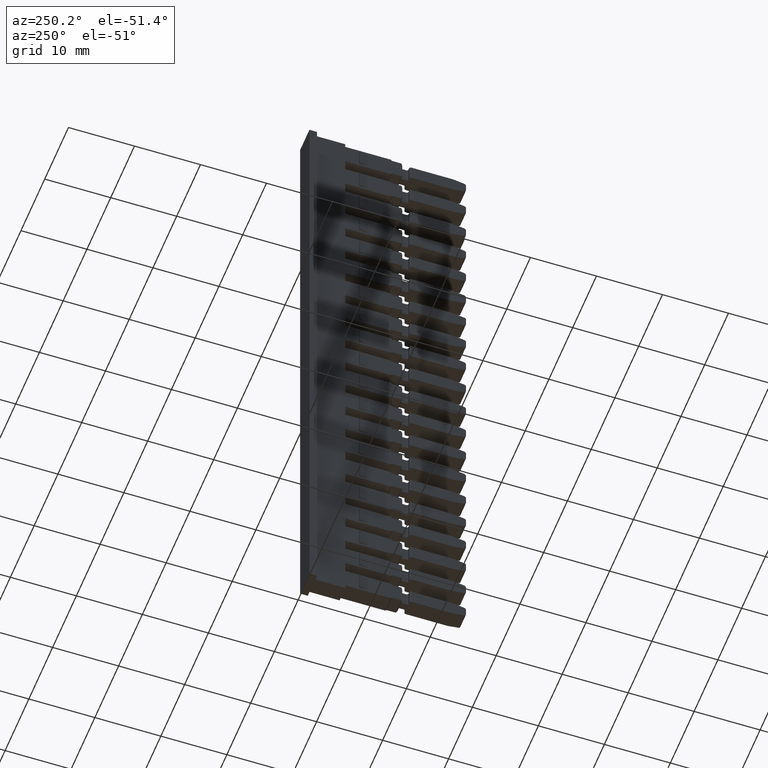
[diagram: clean part render]
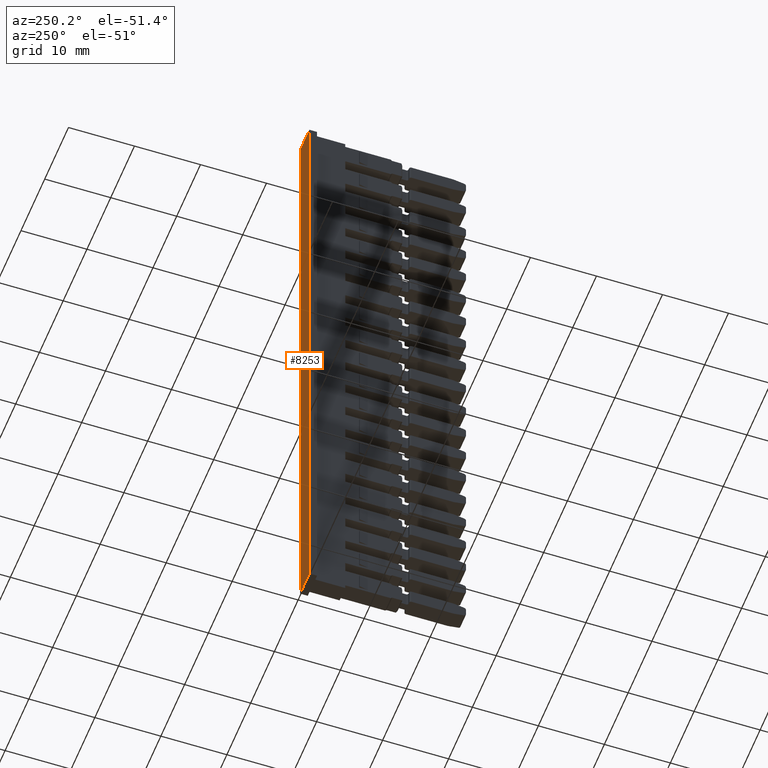
[diagram: same view with one face highlighted and labeled with its STEP entity id]
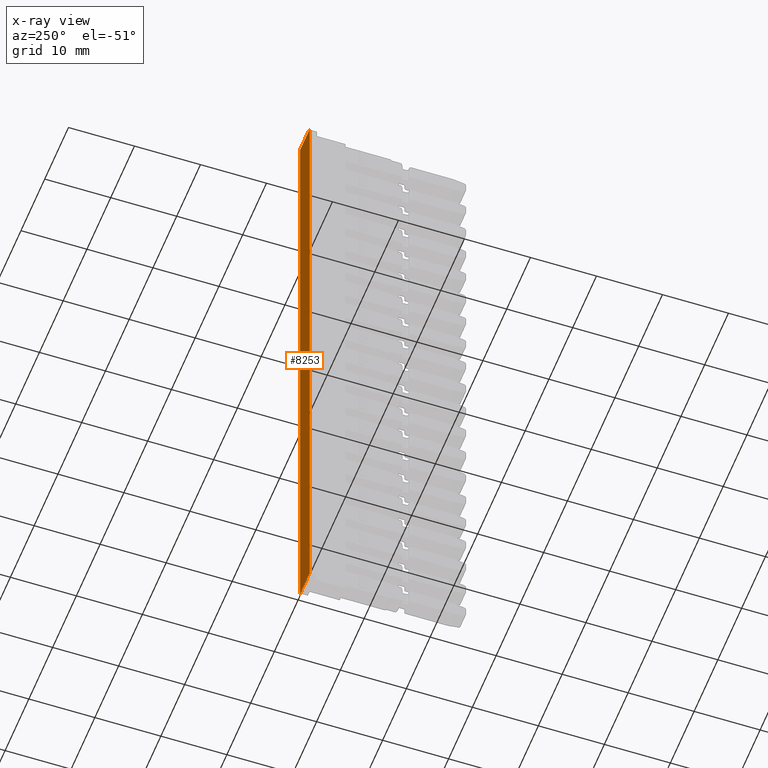
[diagram: x-ray of the same camera — body ghosted, the highlighted face saturated]
A machine part, auxiliary view. The second image highlights one B-rep face of the part: STEP entity #8253.
The next image is the same camera in x-ray: the body ghosted, the highlighted face saturated — about 0% of this face is hidden behind the body in this view.
In plain terms, the highlighted planar face has unit normal (-0, 1, 0).
Its self-contained STEP definition (entity closure, byte-faithful):
#91 = VECTOR ( 'NONE', #11210, 1000.000000000000000 ) ;
#115 = VECTOR ( 'NONE', #11134, 1000.000000000000000 ) ;
#160 = VECTOR ( 'NONE', #11301, 1000.000000000000000 ) ;
#196 = VECTOR ( 'NONE', #11337, 1000.000000000000000 ) ;
#864 = ORIENTED_EDGE ( 'NONE', *, *, #17278, .F. ) ;
#914 = ORIENTED_EDGE ( 'NONE', *, *, #17222, .T. ) ;
#923 = ORIENTED_EDGE ( 'NONE', *, *, #17284, .F. ) ;
#976 = ORIENTED_EDGE ( 'NONE', *, *, #17251, .T. ) ;
#2740 = AXIS2_PLACEMENT_3D ( 'NONE', #20932, #20922, #20923 ) ;
#3670 = CARTESIAN_POINT ( 'NONE',  ( 1456.089907072214600, 989.6926795374903300, 13.05000000017582800 ) ) ;
#3699 = CARTESIAN_POINT ( 'NONE',  ( 1456.089907072214600, 989.6926795374911300, 114.4499999999747900 ) ) ;
#3755 = CARTESIAN_POINT ( 'NONE',  ( 1459.989907072214500, 989.6926795374926100, 13.05000000017584000 ) ) ;
#3757 = CARTESIAN_POINT ( 'NONE',  ( 1459.989907072214500, 989.6926795374918100, 114.4499999999747900 ) ) ;
#8253 = ADVANCED_FACE ( 'NONE', ( #20972 ), #20941, .T. ) ;
#9148 = EDGE_LOOP ( 'NONE', ( #914, #864, #976, #923 ) ) ;
#9698 = VERTEX_POINT ( 'NONE', #3670 ) ;
#9789 = VERTEX_POINT ( 'NONE', #3757 ) ;
#9803 = VERTEX_POINT ( 'NONE', #3755 ) ;
#9805 = VERTEX_POINT ( 'NONE', #3699 ) ;
#11130 = CARTESIAN_POINT ( 'NONE',  ( 1456.089907072214600, 989.6926795374929500, -30.13084736897824800 ) ) ;
#11134 = DIRECTION ( 'NONE',  ( 2.580167520952895700E-028, -6.606529101504750500E-015, 1.000000000000000000 ) ) ;
#11150 = LINE ( 'NONE', #11130, #115 ) ;
#11187 = LINE ( 'NONE', #11332, #196 ) ;
#11189 = LINE ( 'NONE', #11201, #91 ) ;
#11201 = CARTESIAN_POINT ( 'NONE',  ( 1459.989907072214500, 989.6926795374930600, -30.13084736897824800 ) ) ;
#11210 = DIRECTION ( 'NONE',  ( -2.580167520952895700E-028, 6.606529101504750500E-015, -1.000000000000000000 ) ) ;
#11286 = LINE ( 'NONE', #11290, #160 ) ;
#11290 = CARTESIAN_POINT ( 'NONE',  ( 1459.739907072214200, 989.6926795374903300, 114.4499999999747900 ) ) ;
#11301 = DIRECTION ( 'NONE',  ( -1.000000000000000000, -0.0000000000000000000, 0.0000000000000000000 ) ) ;
#11332 = CARTESIAN_POINT ( 'NONE',  ( 1459.739907072214200, 989.6926795374925000, 13.05000000017584000 ) ) ;
#11337 = DIRECTION ( 'NONE',  ( 1.000000000000000000, -0.0000000000000000000, 3.430248998885680200E-015 ) ) ;
#17222 = EDGE_CURVE ( 'NONE', #9698, #9805, #11150, .T. ) ;
#17251 = EDGE_CURVE ( 'NONE', #9789, #9803, #11189, .T. ) ;
#17278 = EDGE_CURVE ( 'NONE', #9789, #9805, #11286, .T. ) ;
#17284 = EDGE_CURVE ( 'NONE', #9698, #9803, #11187, .T. ) ;
#20922 = DIRECTION ( 'NONE',  ( -3.905481200961058500E-014, 1.000000000000000000, 6.606529101504750500E-015 ) ) ;
#20923 = DIRECTION ( 'NONE',  ( -1.000000000000000000, -3.905481200961058500E-014, 0.0000000000000000000 ) ) ;
#20932 = CARTESIAN_POINT ( 'NONE',  ( 1459.739907072214200, 989.6926795374930600, -30.13084736897824800 ) ) ;
#20941 = PLANE ( 'NONE',  #2740 ) ;
#20972 = FACE_OUTER_BOUND ( 'NONE', #9148, .T. ) ;